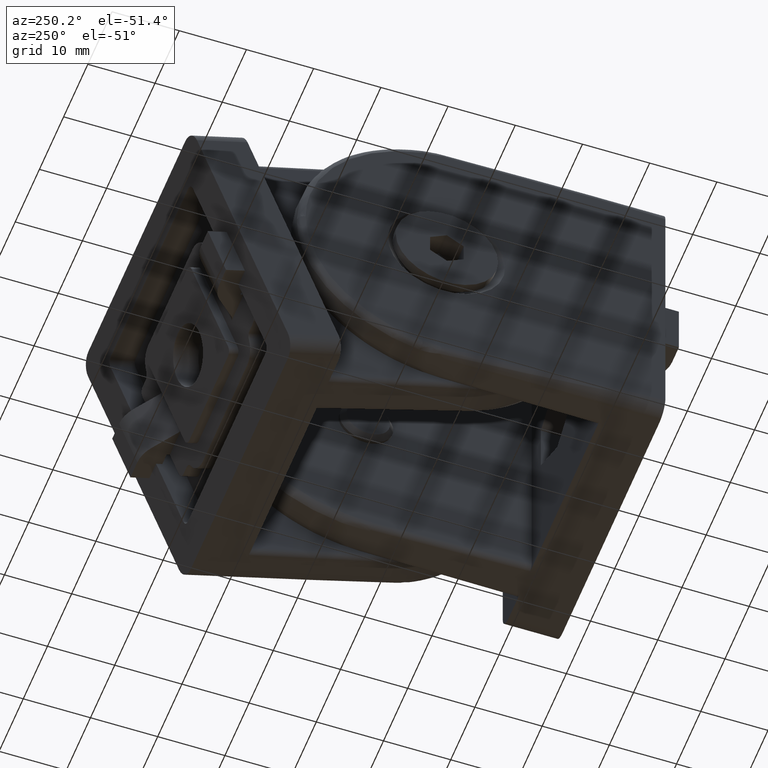
[diagram: clean part render]
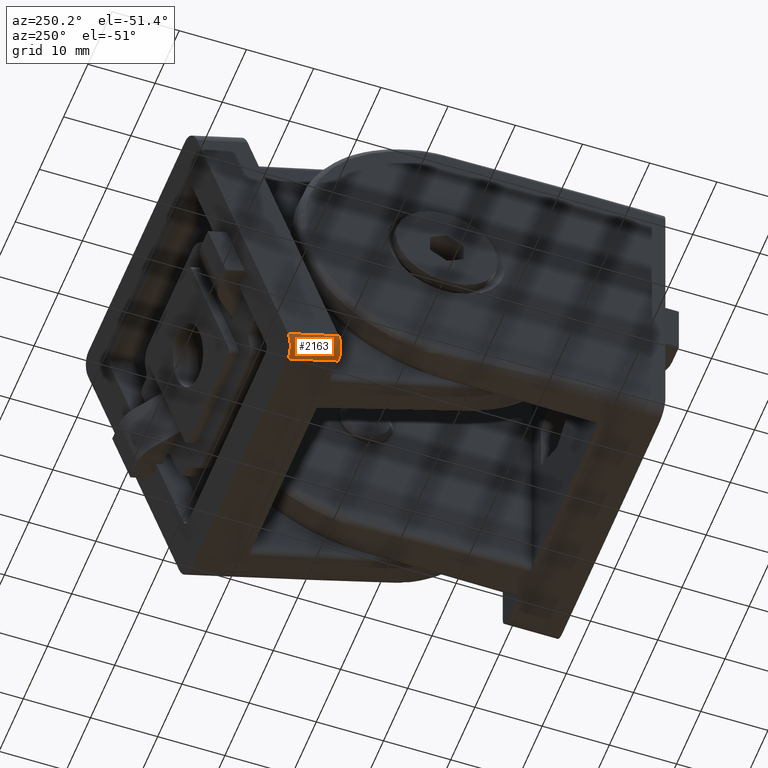
[diagram: same view with one face highlighted and labeled with its STEP entity id]
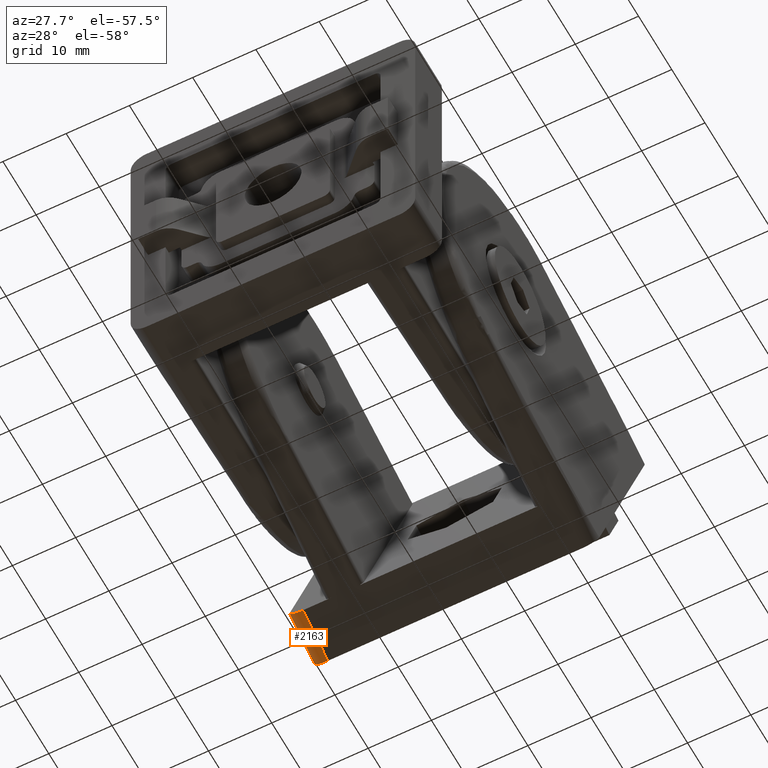
[diagram: same view with one face highlighted and labeled with its STEP entity id]
A machine part, auxiliary view. The second image highlights one B-rep face of the part: STEP entity #2163.
A second angle (auxiliary view) of the same face is appended — the face is thin or edge-on in the first view.
In plain terms, the highlighted cylindrical surface (edge-blend (fillet) strip) has radius 2.5 mm, axis along (0, 0.9409, -0.3387).
Its self-contained STEP definition (entity closure, byte-faithful):
#53=LINE('',#3280,#243);
#74=LINE('',#3348,#264);
#243=VECTOR('',#2506,8.);
#264=VECTOR('',#2563,8.);
#532=CYLINDRICAL_SURFACE('',#2330,2.5);
#607=FACE_OUTER_BOUND('',#743,.T.);
#743=EDGE_LOOP('',(#1693,#1694,#1695,#1696));
#858=CIRCLE('',#2272,2.5);
#861=CIRCLE('',#2278,2.5);
#970=VERTEX_POINT('',#3274);
#972=VERTEX_POINT('',#3278);
#974=VERTEX_POINT('',#3284);
#982=VERTEX_POINT('',#3301);
#1182=EDGE_CURVE('',#970,#972,#53,.T.);
#1184=EDGE_CURVE('',#974,#970,#858,.T.);
#1193=EDGE_CURVE('',#982,#972,#861,.T.);
#1217=EDGE_CURVE('',#974,#982,#74,.T.);
#1693=ORIENTED_EDGE('',*,*,#1184,.T.);
#1694=ORIENTED_EDGE('',*,*,#1182,.T.);
#1695=ORIENTED_EDGE('',*,*,#1193,.F.);
#1696=ORIENTED_EDGE('',*,*,#1217,.F.);
#2163=ADVANCED_FACE('',(#607),#532,.T.);
#2272=AXIS2_PLACEMENT_3D('',#3285,#2511,#2512);
#2278=AXIS2_PLACEMENT_3D('',#3303,#2527,#2528);
#2330=AXIS2_PLACEMENT_3D('',#3818,#2707,#2708);
#2506=DIRECTION('',(0.,-1.,0.));
#2511=DIRECTION('center_axis',(0.,-1.,0.));
#2512=DIRECTION('ref_axis',(0.,0.,-1.));
#2527=DIRECTION('center_axis',(0.,-1.,0.));
#2528=DIRECTION('ref_axis',(0.,0.,1.));
#2563=DIRECTION('',(0.,-1.,0.));
#2707=DIRECTION('center_axis',(0.,-1.,0.));
#2708=DIRECTION('ref_axis',(0.,0.,-1.));
#3274=CARTESIAN_POINT('',(22.5,8.,2.50000000000002));
#3278=CARTESIAN_POINT('',(22.5,0.,2.50000000000002));
#3280=CARTESIAN_POINT('',(22.5,54.,2.50000000000002));
#3284=CARTESIAN_POINT('',(20.,8.,0.));
#3285=CARTESIAN_POINT('Origin',(20.,8.,2.5));
#3301=CARTESIAN_POINT('',(20.,0.,0.));
#3303=CARTESIAN_POINT('Origin',(20.,0.,2.5));
#3348=CARTESIAN_POINT('',(20.,54.,0.));
#3818=CARTESIAN_POINT('Origin',(20.,54.,2.5));